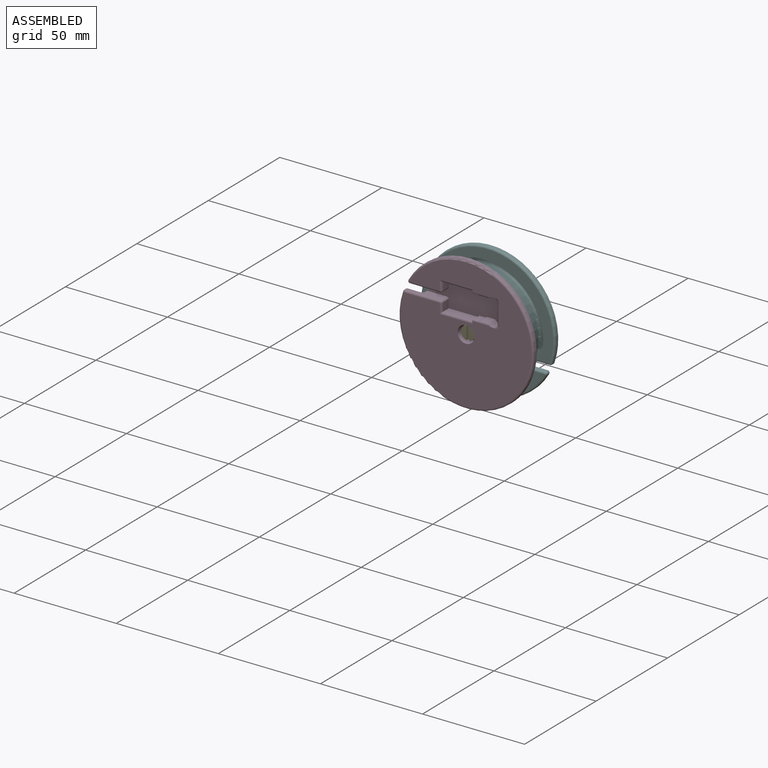
[diagram: assembled view]
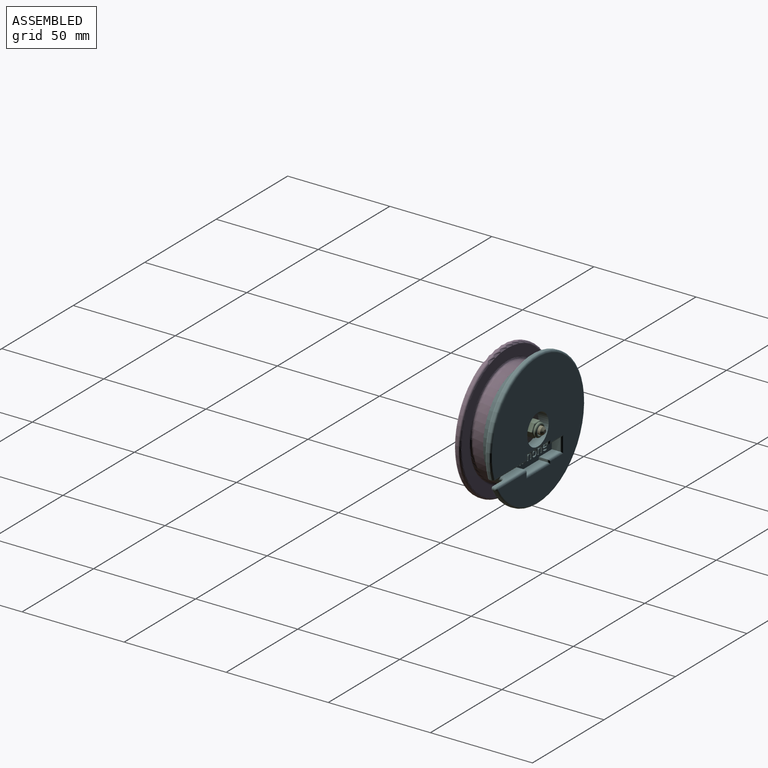
[diagram: assembled view, second angle]
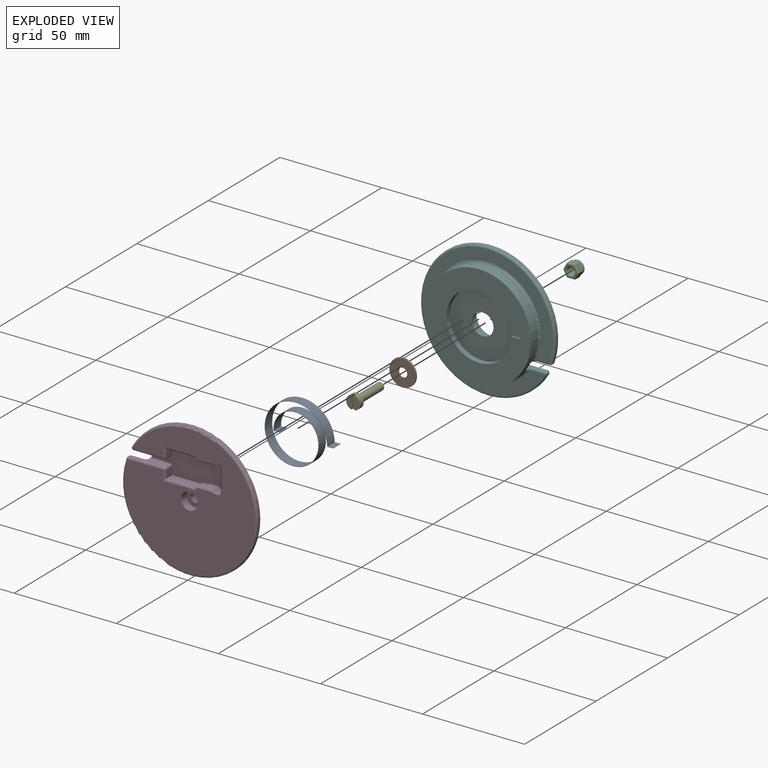
[diagram: exploded view]
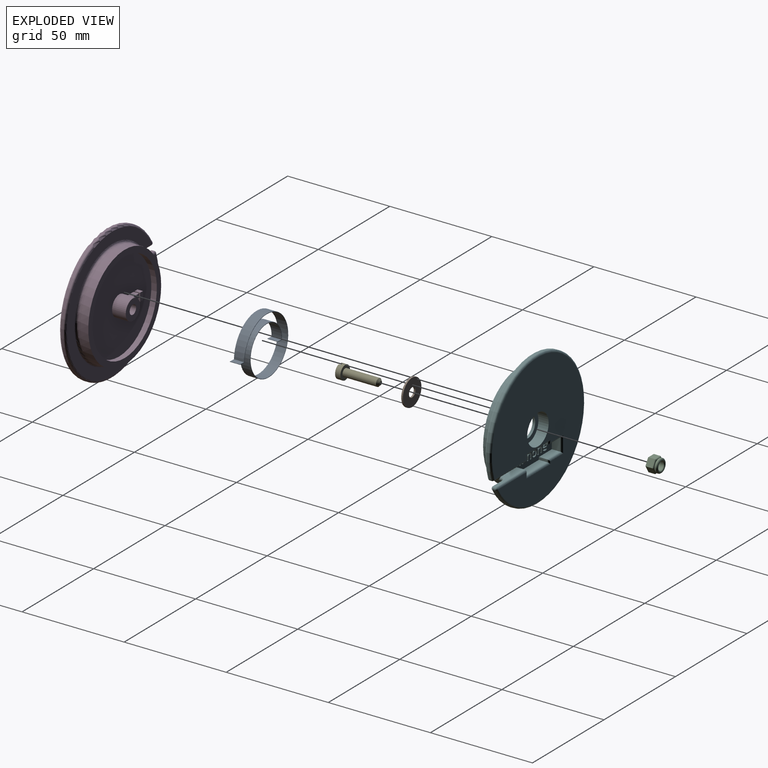
[diagram: exploded view, second angle]
ASSEMBLY  parts=6 mates=5
PART A: 12 faces, bbox 33.7x28.7x5 mm
  f0: plane 33.66x28.7mm, normal (0,0,-1), area 26mm2, adj f2,f3,f4,f5,f6,f7,f8,f9
  f1: plane 33.66x28.7mm, normal (0,0,1), area 26mm2, adj f2,f3,f4,f5,f6,f7,f8,f9
  f2: extruded ~30.7x28.66mm, area 625.3mm2, adj f0,f1,f5,f8
  f3: extruded ~30.3x28.26mm, area 615.8mm2, adj f0,f1,f4,f9
  f4: plane 5x2.79mm, normal (-0.07,1,0), area 14mm2, adj f0,f1,f3,f6
  f5: plane 5x0.2mm, normal (-1,-0.07,0), area 1mm2, adj f0,f1,f2,f7
  f6: plane 5x0.2mm, normal (1,0.07,0), area 1mm2, adj f0,f1,f4,f7
  f7: plane 5x2.99mm, normal (0.07,-1,0), area 15mm2, adj f0,f1,f5,f6
  f8: plane 5x2.8mm, normal (-0.04,1,0), area 14mm2, adj f0,f1,f2,f10
  f9: plane 5x0.2mm, normal (-1,-0.04,0), area 1mm2, adj f0,f1,f3,f11
  f10: plane 5x0.2mm, normal (1,0.04,0), area 1mm2, adj f0,f1,f8,f11
  f11: plane 5x3mm, normal (0.04,-1,0), area 15mm2, adj f0,f1,f9,f10
PART B: 4 faces, bbox 13x13x0.8 mm
  f0: cylinder r=2.25mm len=4.5mm, axis (0,0,1), area 11.3mm2, adj f2,f3
  f1: cylinder r=6.5mm len=13mm, axis (0,0,1), area 32.7mm2, adj f2,f3
  f2: plane 13x13mm, normal (0,0,-1), area 116.8mm2, adj f0,f1
  f3: plane 13x13mm, normal (0,0,1), area 116.8mm2, adj f0,f1
PART C: 33 faces, bbox 7.5x7.1x5.5 mm
  f0: cylinder r=2mm len=4.5mm, axis (0,0,1), area 56.5mm2, adj f31,f32
  f1: cylinder r=3.3mm len=6.6mm, axis (0,0,1), area 2.1mm2, adj f3,f4
  f2: plane 5.2x5.2mm, normal (0,0,1), area 1.6mm2, adj f3,f32
  f3: torus R=2.6mm, axis (0,0,1), area 21mm2, adj f1,f2
  f4: torus R=2.6mm, axis (0,0,1), area 21mm2, adj f1,f12
  f5: plane 3.3x3mm, normal (0.87,-0.5,0), area 11.4mm2, adj f6,f10,f15,f19
  f6: plane 3.81x3mm, normal (0,-1,0), area 11.4mm2, adj f5,f7,f20,f23
  f7: plane 3.05x3mm, normal (-0.87,-0.5,0), area 10.6mm2, adj f6,f24,f27,f30
  f8: plane 3x2.8mm, normal (-0.87,0.5,0), area 9.7mm2, adj f17,f25,f26,f30
  f9: plane 3.52x3mm, normal (0,1,0), area 10.6mm2, adj f10,f16,f17,f18
  f10: plane 3.3x3mm, normal (0.87,0.5,0), area 11.4mm2, adj f5,f9,f13,f14
  f11: plane 6.47x5.6mm, normal (0,0,-1), area 7.5mm2, adj f13,f15,f16,f20,f24,f25,f31
  f12: plane 6.47x5.6mm, normal (0,0,1), area 5.9mm2, adj f4,f14,f18,f19,f23,f26,f27
  f13: cylinder r=0.5mm len=3.55mm, axis (-0.5,0.87,0), area 2.8mm2, adj f10,f11,f15,f16
  f14: cylinder r=0.5mm len=3.55mm, axis (0.5,-0.87,0), area 2.8mm2, adj f10,f12,f18,f19
  f15: cylinder r=0.5mm len=3.55mm, axis (0.5,0.87,0), area 2.8mm2, adj f5,f11,f13,f20
  f16: cylinder r=0.5mm len=3.52mm, axis (-1,0,0), area 2.7mm2, adj f9,f11,f13,f21
  f17: cylinder r=0.5mm len=3mm, axis (0,0,1), area 1.6mm2, adj f8,f9,f21,f22
  f18: cylinder r=0.5mm len=3.52mm, axis (1,0,0), area 2.7mm2, adj f9,f12,f14,f22
  f19: cylinder r=0.5mm len=3.55mm, axis (-0.5,-0.87,0), area 2.8mm2, adj f5,f12,f14,f23
  f20: cylinder r=0.5mm len=3.81mm, axis (1,0,0), area 2.8mm2, adj f6,f11,f15,f24
  f21: sphere r=0.5mm, area 0.3mm2, adj f16,f17,f25
  f22: sphere r=0.5mm, area 0.3mm2, adj f17,f18,f26
  f23: cylinder r=0.5mm len=3.81mm, axis (-1,0,0), area 2.8mm2, adj f6,f12,f19,f27
  f24: cylinder r=0.5mm len=3.3mm, axis (0.5,-0.87,0), area 2.7mm2, adj f7,f11,f20,f28
  f25: cylinder r=0.5mm len=3.05mm, axis (-0.5,-0.87,0), area 2.5mm2, adj f8,f11,f21,f28
  f26: cylinder r=0.5mm len=3.05mm, axis (0.5,0.87,0), area 2.5mm2, adj f8,f12,f22,f29
  f27: cylinder r=0.5mm len=3.3mm, axis (-0.5,0.87,0), area 2.7mm2, adj f7,f12,f23,f29
  f28: sphere r=0.5mm, area 0.3mm2, adj f24,f25,f30
  f29: sphere r=0.5mm, area 0.3mm2, adj f26,f27,f30
  f30: cylinder r=0.5mm len=3mm, axis (0,0,1), area 1.6mm2, adj f7,f8,f28,f29
  f31: torus R=2.5mm, axis (0,0,-1), area 10.8mm2, adj f0,f11
  f32: torus R=2.5mm, axis (0,0,1), area 10.8mm2, adj f0,f2
PART D: 79 faces, bbox 71.4x13x71.4 mm
  f0: cylinder r=33mm len=66mm, axis (0,1,0), area 201.1mm2, adj f27,f28,f29,f30
  f1: plane 64x64mm, normal (0,1,0), area 976.7mm2, adj f28,f31,f47,f53
  f2: plane 64x64mm, normal (0,-1,0), area 2658.4mm2, adj f7,f8,f12,f19,f23,f24,f29,f55
  f3: cylinder r=25.5mm len=51mm, axis (0,1,0), area 787.4mm2, adj f4,f31,f49,f50,f51
  f4: plane 51x51mm, normal (0,1,0), area 452.4mm2, adj f3,f38
  f5: plane 11x4mm, normal (-1,0,0), area 44mm2, adj f6,f25,f26,f74
  f6: plane 4x1.5mm, normal (-0.62,0,-0.78), area 7.7mm2, adj f5,f7,f26,f75
  f7: plane 5x3.1mm, normal (0,0,-1), area 7.8mm2, adj f2,f6,f8,f26,f75
  f8: plane 5x1.23mm, normal (0.62,0,-0.78), area 7.7mm2, adj f2,f7,f26,f68,f69
  f9: plane 4x2.99mm, normal (0,0,-1), area 11.9mm2, adj f26,f67,f68,f69
  f10: plane 4.87x1.35mm, normal (-0.32,0,-0.95), area 6.6mm2, adj f11,f26,f67,f68
  f11: plane 4.87x2.5mm, normal (0,0,-1), area 12.2mm2, adj f10,f12,f26,f68
  f12: plane 5x1.7mm, normal (-1,0,0), area 3.7mm2, adj f2,f11,f13,f26,f61,f68
  f13: plane 15x4mm, normal (0,0,-1), area 60mm2, adj f12,f14,f26,f61
  f14: plane 4x3.95mm, normal (1,0,0), area 15.8mm2, adj f13,f26,f62,f63
  f15: plane 14.79x4mm, normal (0,0,-1), area 32.8mm2, adj f26,f30,f47,f48,f49,f63,f65
  f16: plane 17.3x4.11mm, normal (0,0,1), area 45.9mm2, adj f26,f27,f50,f51,f52,f53,f56,f59
  f17: plane 4x3.95mm, normal (1,0,0), area 15.8mm2, adj f18,f26,f56,f57
  f18: plane 15x4mm, normal (0,0,1), area 60mm2, adj f17,f19,f26,f55
  f19: plane 5x1.7mm, normal (-1,0,0), area 3.7mm2, adj f2,f18,f20,f26,f55,f71
  f20: plane 4.87x2.5mm, normal (0,0,1), area 12.2mm2, adj f19,f21,f26,f71
  f21: plane 4.87x1.35mm, normal (-0.32,0,0.95), area 6.6mm2, adj f20,f26,f71,f72
  f22: plane 4x2.99mm, normal (0,0,1), area 11.9mm2, adj f26,f70,f71,f72
  f23: plane 5x1.23mm, normal (0.62,0,0.78), area 7.7mm2, adj f2,f24,f26,f70,f71
  f24: plane 5x3.1mm, normal (0,0,1), area 7.8mm2, adj f2,f23,f25,f26,f73
  f25: plane 4x1.5mm, normal (-0.62,0,0.78), area 7.7mm2, adj f5,f24,f26,f73
  f26: plane 36.7x13.4mm, normal (0,-1,0), area 374.2mm2, adj f5,f6,f7,f8,f9,f10,f11,f12
  f27: cylinder r=1mm len=1mm, axis (0,1,0), area 1.2mm2, adj f0,f16,f54,f60
  f28: torus R=32mm, axis (0,-1,0), area 312.4mm2, adj f0,f1,f46,f54
  f29: torus R=32mm, axis (0,-1,0), area 312.4mm2, adj f0,f2,f60,f66
  f30: cylinder r=1mm len=1.5mm, axis (0,1,0), area 2.1mm2, adj f0,f15,f46,f66
  f31: torus R=26.5mm, axis (0,-1,0), area 244.8mm2, adj f1,f3,f48,f52
  f32: plane 4x2.7mm, normal (0,0,-1), area 10.8mm2, adj f33,f40,f41,f42
  f33: plane 2.7x2mm, normal (1,0,0), area 5.4mm2, adj f32,f34,f41,f42
  f34: plane 4x2.7mm, normal (0,0,1), area 10.8mm2, adj f33,f40,f41,f42
  f35: plane 4x2.7mm, normal (1,0,0), area 10.8mm2, adj f36,f39,f41,f43
  f36: plane 2.7x2mm, normal (0,0,1), area 5.4mm2, adj f35,f37,f41,f43
  f37: plane 4x2.7mm, normal (-1,0,0), area 10.8mm2, adj f36,f39,f41,f43
  f38: cylinder r=22.5mm len=45mm, axis (0,1,0), area 381.7mm2, adj f4,f41
  f39: plane 2.7x2mm, normal (0,0,-1), area 5.4mm2, adj f35,f37,f41,f43
  f40: plane 2.7x2mm, normal (-1,0,0), area 5.4mm2, adj f32,f34,f41,f42
  f41: plane 45x45mm, normal (0,1,0), area 1495.9mm2, adj f32,f33,f34,f35,f36,f37,f38,f39
  f42: plane 4x2mm, normal (0,1,0), area 8mm2, adj f32,f33,f34,f40
  f43: plane 4x2mm, normal (0,1,0), area 8mm2, adj f35,f36,f37,f39
  f44: plane 10x10mm, normal (0,1,0), area 62.6mm2, adj f45,f76
  f45: cylinder r=5mm len=10mm, axis (0,-1,0), area 210.5mm2, adj f41,f44
  f46: sphere r=1mm, area 2.1mm2, adj f28,f30,f47
  f47: cylinder r=1mm len=6.58mm, axis (1,0,0), area 10.3mm2, adj f1,f15,f46,f48
  f48: bspline ~3.24x2.37mm, area 4.9mm2, adj f15,f31,f47,f49
  f49: cylinder r=1mm len=2mm, axis (0,1,0), area 2.9mm2, adj f3,f15,f26,f48,f50
  f50: torus R=24.5mm, axis (0,-1,0), area 8.6mm2, adj f3,f16,f26,f49,f51
  f51: cylinder r=1mm len=2mm, axis (0,1,0), area 1.7mm2, adj f3,f16,f50,f52
  f52: bspline ~2.71x2.42mm, area 3.1mm2, adj f16,f31,f51,f53
  f53: cylinder r=1mm len=5.89mm, axis (-1,0,0), area 9.3mm2, adj f1,f16,f52,f54
  f54: sphere r=1mm, area 1.2mm2, adj f27,f28,f53
  f55: cylinder r=1mm len=16mm, axis (-1,0,0), area 24.1mm2, adj f2,f18,f19,f57
  f56: cylinder r=1mm len=4mm, axis (0,-1,0), area 6.3mm2, adj f16,f17,f26,f58
  f57: cylinder r=1mm len=4.95mm, axis (0,0,1), area 6.8mm2, adj f2,f17,f55,f58
  f58: sphere r=1mm, area 1.6mm2, adj f56,f57,f59
  f59: cylinder r=1mm len=17.29mm, axis (-1,0,0), area 27.2mm2, adj f2,f16,f58,f60
  f60: sphere r=1mm, area 1.2mm2, adj f27,f29,f59
  f61: cylinder r=1mm len=16mm, axis (1,0,0), area 24.1mm2, adj f2,f12,f13,f62
  f62: cylinder r=1mm len=4.95mm, axis (0,0,1), area 6.8mm2, adj f2,f14,f61,f64
  f63: cylinder r=1mm len=4mm, axis (0,-1,0), area 6.3mm2, adj f14,f15,f26,f64
  f64: sphere r=1mm, area 1.6mm2, adj f62,f63,f65
  f65: cylinder r=1mm len=14.79mm, axis (1,0,0), area 23.2mm2, adj f2,f15,f64,f66
  f66: sphere r=1mm, area 2.1mm2, adj f29,f30,f65
  f67: cylinder r=1mm len=4.32mm, axis (0,-1,0), area 1.3mm2, adj f9,f10,f26,f68
  f68: cylinder r=1mm len=8.75mm, axis (1,0,0), area 8.7mm2, adj f2,f8,f9,f10,f11,f12,f67,f69
  f69: cylinder r=1mm len=4.62mm, axis (0,-1,0), area 2.9mm2, adj f8,f9,f26,f68
  f70: cylinder r=1mm len=4.62mm, axis (0,-1,0), area 2.9mm2, adj f22,f23,f26,f71
  f71: cylinder r=1mm len=8.75mm, axis (-1,0,0), area 8.7mm2, adj f2,f19,f20,f21,f22,f23,f70,f72
  f72: cylinder r=1mm len=4.32mm, axis (0,-1,0), area 1.3mm2, adj f21,f22,f26,f71
  f73: cylinder r=1mm len=2.5mm, axis (-0.78,0,-0.62), area 2.6mm2, adj f2,f24,f25,f74
  f74: cylinder r=1mm len=11.96mm, axis (0,0,-1), area 17.8mm2, adj f2,f5,f73,f75
  f75: cylinder r=1mm len=2.5mm, axis (0.78,0,-0.62), area 2.6mm2, adj f2,f6,f7,f74
  f76: cylinder r=2.25mm len=9mm, axis (0,-1,0), area 127.2mm2, adj f44,f77
  f77: plane 8.25x8.25mm, normal (0,-1,0), area 37.6mm2, adj f76,f78
  f78: cylinder r=4.12mm len=8.25mm, axis (0,-1,0), area 103.7mm2, adj f2,f77
PART E: 10 faces, bbox 6.8x6.8x20 mm
  f0: cylinder r=3.4mm len=6.8mm, axis (0,0,1), area 52.3mm2, adj f1,f2,f3,f6,f7,f8
  f1: plane 6.61x2.6mm, normal (0,0,1), area 12.8mm2, adj f0,f6
  f2: plane 6.8x6.8mm, normal (0,0,-1), area 25mm2, adj f0,f4
  f3: plane 6.61x2.6mm, normal (0,0,1), area 12.8mm2, adj f0,f7
  f4: cylinder r=1.9mm len=16.4mm, axis (0,0,1), area 195.8mm2, adj f2,f9
  f5: plane 1.8x1.8mm, normal (0,0,-1), area 2.5mm2, adj f9
  f6: plane 6.61x1mm, normal (-1,0,0), area 6.6mm2, adj f0,f1,f8
  f7: plane 6.61x1mm, normal (1,0,0), area 6.6mm2, adj f0,f3,f8
  f8: plane 6.8x1.6mm, normal (0,0,1), area 10.8mm2, adj f0,f6,f7
  f9: cone r=1.9mm half-angle=45deg, axis (0,0,1), area 12.4mm2, adj f4,f5
PART F: 163 faces, bbox 71.4x9x71.4 mm
  f0: plane 38.48x9mm, normal (0,1,0), area 201.8mm2, adj f7,f8,f9,f10,f11,f12,f13,f14
  f1: cylinder r=5.25mm len=10.5mm, axis (0,1,0), area 42.9mm2, adj f50,f55
  f2: plane 64x64mm, normal (0,1,0), area 2661.7mm2, adj f18,f19,f20,f21,f22,f23,f24,f26
  f3: cylinder r=33mm len=66mm, axis (0,-1,0), area 201.1mm2, adj f34,f35,f38,f39
  f4: cylinder r=25.5mm len=51mm, axis (0,1,0), area 787.4mm2, adj f5,f43,f45,f46,f48
  f5: plane 51x51mm, normal (0,-1,0), area 1236.6mm2, adj f4,f51,f52,f53,f54
  f6: plane 64x64mm, normal (0,-1,0), area 976.7mm2, adj f39,f40,f44,f45
  f7: plane 22.07x4.11mm, normal (0,0,-1), area 65mm2, adj f0,f25,f30,f35,f40,f42,f43,f46
  f8: plane 19.56x4mm, normal (0,0,1), area 51.9mm2, adj f0,f28,f33,f38,f44,f47,f48
  f9: plane 4x1.75mm, normal (-1,0,0), area 7mm2, adj f0,f10,f28,f29
  f10: plane 15x4mm, normal (0,0,1), area 60mm2, adj f0,f9,f11,f26
  f11: plane 4x1.25mm, normal (1,0,0), area 5mm2, adj f0,f10,f12,f23
  f12: plane 9x4mm, normal (0,0,1), area 36mm2, adj f0,f11,f13,f21
  f13: plane 6.5x4mm, normal (1,0,0), area 26mm2, adj f0,f12,f14,f19
  f14: plane 9x4mm, normal (0,0,-1), area 36mm2, adj f0,f13,f15,f18
  f15: plane 4x1.25mm, normal (1,0,0), area 5mm2, adj f0,f14,f16,f20
  f16: plane 15x4mm, normal (0,0,-1), area 60mm2, adj f0,f15,f17,f22
  f17: plane 4x1.75mm, normal (-1,0,0), area 7mm2, adj f0,f16,f24,f25
  f18: cylinder r=1mm len=10mm, axis (-1,0,0), area 14.1mm2, adj f2,f14,f19,f20
  f19: cylinder r=1mm len=8.5mm, axis (0,0,-1), area 11.4mm2, adj f2,f13,f18,f21
  f20: cylinder r=1mm len=2.25mm, axis (0,0,-1), area 2mm2, adj f2,f15,f18,f22
  f21: cylinder r=1mm len=10mm, axis (1,0,0), area 14.1mm2, adj f2,f12,f19,f23
  f22: cylinder r=1mm len=17mm, axis (-1,0,0), area 24.7mm2, adj f2,f16,f20,f24
  f23: cylinder r=1mm len=2.25mm, axis (0,0,-1), area 2mm2, adj f2,f11,f21,f26
  f24: cylinder r=1mm len=2.75mm, axis (0,0,1), area 3.3mm2, adj f2,f17,f22,f27
  f25: cylinder r=1mm len=4mm, axis (0,1,0), area 6.3mm2, adj f0,f7,f17,f27
  f26: cylinder r=1mm len=17mm, axis (1,0,0), area 24.7mm2, adj f2,f10,f23,f29
  f27: sphere r=1mm, area 1.6mm2, adj f24,f25,f30
  f28: cylinder r=1mm len=4mm, axis (0,1,0), area 6.3mm2, adj f0,f8,f9,f31
  f29: cylinder r=1mm len=2.75mm, axis (0,0,1), area 3.3mm2, adj f2,f9,f26,f31
  f30: cylinder r=1mm len=22.06mm, axis (-1,0,0), area 34.7mm2, adj f2,f7,f27,f32
  f31: sphere r=1mm, area 1.6mm2, adj f28,f29,f33
  f32: sphere r=1mm, area 1.3mm2, adj f30,f34,f35
  f33: cylinder r=1mm len=19.56mm, axis (1,0,0), area 30.7mm2, adj f2,f8,f31,f36
  f34: torus R=32mm, axis (0,1,0), area 312.4mm2, adj f2,f3,f32,f36
  f35: cylinder r=1mm len=1mm, axis (0,-1,0), area 1.2mm2, adj f3,f7,f32,f37
  f36: sphere r=1mm, area 2.1mm2, adj f33,f34,f38
  f37: sphere r=1mm, area 1.2mm2, adj f35,f39,f40
  f38: cylinder r=1mm len=1.5mm, axis (0,-1,0), area 2.1mm2, adj f3,f8,f36,f41
  f39: torus R=32mm, axis (0,1,0), area 312.4mm2, adj f3,f6,f37,f41
  f40: cylinder r=1mm len=5.89mm, axis (-1,0,0), area 9.3mm2, adj f6,f7,f37,f42
  f41: sphere r=1mm, area 2.1mm2, adj f38,f39,f44
  f42: bspline ~2.71x2.17mm, area 3.1mm2, adj f7,f40,f43,f45
  f43: cylinder r=1mm len=2mm, axis (0,1,0), area 1.8mm2, adj f4,f7,f42,f46
  f44: cylinder r=1mm len=6.58mm, axis (1,0,0), area 10.3mm2, adj f6,f8,f41,f47
  f45: torus R=26.5mm, axis (0,1,0), area 244.8mm2, adj f4,f6,f42,f47
  f46: torus R=24.5mm, axis (0,1,0), area 8.6mm2, adj f0,f4,f7,f43,f48
  f47: bspline ~2.95x2.37mm, area 4.9mm2, adj f8,f44,f45,f48
  f48: cylinder r=1mm len=2mm, axis (0,1,0), area 2.9mm2, adj f0,f4,f8,f46,f47
  f49: cylinder r=7.5mm len=15mm, axis (0,1,0), area 235.6mm2, adj f2,f50
  f50: plane 15x15mm, normal (0,1,0), area 90.1mm2, adj f1,f49
  f51: cylinder r=16mm len=32mm, axis (0,-1,0), area 270.1mm2, adj f5,f52,f54,f55
  f52: plane 4x2.7mm, normal (0,0,1), area 10.8mm2, adj f5,f51,f53,f55
  f53: plane 2.7x0.5mm, normal (-1,0,0), area 1.4mm2, adj f5,f52,f54,f55
  f54: plane 4x2.7mm, normal (0,0,-1), area 10.8mm2, adj f5,f51,f53,f55
  f55: plane 35.99x32mm, normal (0,-1,0), area 719.7mm2, adj f1,f51,f52,f53,f54
  f56: extruded ~1x0.47mm, area 0.7mm2, adj f0,f57,f60,f61
  f57: extruded ~1x0.47mm, area 0.7mm2, adj f0,f56,f58,f61
  f58: extruded ~1x0.35mm, area 0.4mm2, adj f0,f57,f59,f61
  f59: extruded ~1x0.31mm, area 0.3mm2, adj f0,f58,f60,f61
  f60: extruded ~1x0.47mm, area 0.7mm2, adj f0,f56,f59,f61
  f61: plane 0.93x0.84mm, normal (0,1,0), area 0.7mm2, adj f56,f57,f58,f59,f60
  f62: extruded ~1.18x1mm, area 1.3mm2, adj f0,f63,f81,f82
  f63: extruded ~1x0.62mm, area 0.6mm2, adj f0,f62,f64,f82
  f64: extruded ~1x0.48mm, area 0.5mm2, adj f0,f63,f65,f82
  f65: plane 1x0.66mm, normal (1,0,0), area 0.7mm2, adj f0,f64,f66,f82
  f66: extruded ~1x0.53mm, area 0.6mm2, adj f0,f65,f67,f82
  f67: extruded ~1x0.54mm, area 0.5mm2, adj f0,f66,f68,f82
  f68: extruded ~1x0.57mm, area 0.6mm2, adj f0,f67,f69,f82
  f69: extruded ~1x0.57mm, area 0.6mm2, adj f0,f68,f70,f82
  f70: plane 2.02x1mm, normal (0,0,1), area 2mm2, adj f0,f69,f71,f82
  f71: plane 1x0.42mm, normal (1,0,0), area 0.4mm2, adj f0,f70,f72,f82
  f72: extruded ~1.05x1mm, area 1.1mm2, adj f0,f71,f73,f82
  f73: extruded ~1.04x1mm, area 1.1mm2, adj f0,f72,f74,f82
  f74: extruded ~1.09x1mm, area 1.2mm2, adj f0,f73,f75,f82
  f75: extruded ~1.22x1mm, area 1.3mm2, adj f0,f74,f81,f82
  f76: extruded ~1x0.43mm, area 0.5mm2, adj f77,f80,f82,f83
  f77: extruded ~1x0.43mm, area 0.5mm2, adj f76,f78,f82,f83
  f78: extruded ~1x0.49mm, area 0.5mm2, adj f77,f79,f82,f83
  f79: plane 1.2x1mm, normal (0,0,-1), area 1.2mm2, adj f78,f80,f82,f83
  f80: extruded ~1x0.49mm, area 0.5mm2, adj f76,f79,f82,f83
  f81: extruded ~1.18x1mm, area 1.3mm2, adj f0,f62,f75,f82
  f82: plane 3.25x2.89mm, normal (0,1,0), area 5.9mm2, adj f62,f63,f64,f65,f66,f67,f68,f69
  f83: plane 1.2x0.66mm, normal (0,1,0), area 0.6mm2, adj f76,f77,f78,f79,f80
  f84: extruded ~1.2x1mm, area 1.3mm2, adj f0,f85,f101,f102
  f85: extruded ~1x0.86mm, area 0.9mm2, adj f0,f84,f86,f102
  f86: extruded ~1x0.56mm, area 0.8mm2, adj f0,f85,f87,f102
  f87: extruded ~1x0.8mm, area 0.8mm2, adj f0,f86,f88,f102
  f88: extruded ~1.13x1mm, area 1.2mm2, adj f0,f87,f89,f102
  f89: extruded ~1.2x1mm, area 1.3mm2, adj f0,f88,f90,f102
  f90: extruded ~1x0.86mm, area 0.9mm2, adj f0,f89,f91,f102
  f91: extruded ~1x0.57mm, area 0.8mm2, adj f0,f90,f92,f102
  f92: extruded ~1x0.8mm, area 0.8mm2, adj f0,f91,f101,f102
  f93: extruded ~1x0.7mm, area 0.7mm2, adj f94,f100,f102,f103
  f94: extruded ~1x0.7mm, area 0.7mm2, adj f93,f95,f102,f103
  f95: extruded ~1x0.49mm, area 0.6mm2, adj f94,f96,f102,f103
  f96: extruded ~1x0.5mm, area 0.6mm2, adj f95,f97,f102,f103
  f97: extruded ~1x0.7mm, area 0.7mm2, adj f96,f98,f102,f103
  f98: extruded ~1x0.71mm, area 0.7mm2, adj f97,f99,f102,f103
  f99: extruded ~1x0.49mm, area 0.6mm2, adj f98,f100,f102,f103
  f100: extruded ~1x0.5mm, area 0.6mm2, adj f93,f99,f102,f103
  f101: extruded ~1.13x1mm, area 1.2mm2, adj f0,f84,f92,f102
  f102: plane 3.25x3.04mm, normal (0,1,0), area 6mm2, adj f84,f85,f86,f87,f88,f89,f90,f91
  f103: plane 1.88x1.29mm, normal (0,1,0), area 2mm2, adj f93,f94,f95,f96,f97,f98,f99,f100
  f104: plane 1x0.86mm, normal (0,0,1), area 0.9mm2, adj f0,f105,f107,f108
  f105: plane 3.14x1mm, normal (1,0,0), area 3.1mm2, adj f0,f104,f106,f108
  f106: plane 1x0.86mm, normal (0,0,-1), area 0.9mm2, adj f0,f105,f107,f108
  f107: plane 3.14x1mm, normal (-1,0,0), area 3.1mm2, adj f0,f104,f106,f108
  f108: plane 3.14x0.86mm, normal (0,1,0), area 2.7mm2, adj f104,f105,f106,f107
  f109: plane 1x0.86mm, normal (0,0,1), area 0.9mm2, adj f0,f110,f125,f126
  f110: plane 2.05x1mm, normal (1,0,0), area 2mm2, adj f0,f109,f111,f126
  f111: extruded ~1x0.85mm, area 0.9mm2, adj f0,f110,f112,f126
  f112: extruded ~1x0.84mm, area 0.9mm2, adj f0,f111,f113,f126
  f113: extruded ~1x0.91mm, area 1.1mm2, adj f0,f112,f114,f126
  f114: plane 1x0.05mm, normal (0,0,-1), area 0mm2, adj f0,f113,f115,f126
  f115: plane 1x0.25mm, normal (1,0,0.08), area 0.3mm2, adj f0,f114,f116,f126
  f116: extruded ~1x0.49mm, area 0.5mm2, adj f0,f115,f117,f126
  f117: plane 1x0.89mm, normal (1,0,0), area 0.9mm2, adj f0,f116,f118,f126
  f118: plane 1x0.86mm, normal (0,0,-1), area 0.9mm2, adj f0,f117,f119,f126
  f119: plane 4.37x1mm, normal (-1,0,0), area 4.4mm2, adj f0,f118,f120,f126
  f120: plane 1x0.86mm, normal (0,0,1), area 0.9mm2, adj f0,f119,f121,f126
  f121: plane 1.48x1mm, normal (1,0,0), area 1.5mm2, adj f0,f120,f122,f126
  f122: extruded ~1x0.79mm, area 0.8mm2, adj f0,f121,f123,f126
  f123: extruded ~1x0.52mm, area 0.6mm2, adj f0,f122,f124,f126
  f124: extruded ~1x0.68mm, area 1mm2, adj f0,f123,f125,f126
  f125: plane 1.83x1mm, normal (-1,0,0), area 1.8mm2, adj f0,f109,f124,f126
  f126: plane 4.37x2.9mm, normal (0,1,0), area 7.1mm2, adj f109,f110,f111,f112,f113,f114,f115,f116
  f127: plane 1x0.86mm, normal (0,0,1), area 0.9mm2, adj f0,f128,f143,f144
  f128: plane 2.05x1mm, normal (1,0,0), area 2mm2, adj f0,f127,f129,f144
  f129: extruded ~1x0.85mm, area 0.9mm2, adj f0,f128,f130,f144
  f130: extruded ~1x0.83mm, area 0.9mm2, adj f0,f129,f131,f144
  f131: extruded ~1x0.57mm, area 0.6mm2, adj f0,f130,f132,f144
  f132: extruded ~1x0.39mm, area 0.5mm2, adj f0,f131,f133,f144
  f133: plane 1x0.05mm, normal (0,0,-1), area 0mm2, adj f0,f132,f134,f144
  f134: plane 1x0.4mm, normal (0.96,0,-0.28), area 0.4mm2, adj f0,f133,f135,f144
  f135: plane 1x0.65mm, normal (0,0,-1), area 0.7mm2, adj f0,f134,f136,f144
  f136: plane 3.14x1mm, normal (-1,0,0), area 3.1mm2, adj f0,f135,f137,f144
  f137: plane 1x0.86mm, normal (0,0,1), area 0.9mm2, adj f0,f136,f138,f144
  f138: plane 1.48x1mm, normal (1,0,0), area 1.5mm2, adj f0,f137,f139,f144
  f139: extruded ~1x0.8mm, area 0.8mm2, adj f0,f138,f140,f144
  f140: extruded ~1x0.52mm, area 0.6mm2, adj f0,f139,f141,f144
  f141: extruded ~1x0.39mm, area 0.4mm2, adj f0,f140,f142,f144
  f142: extruded ~1x0.51mm, area 0.5mm2, adj f0,f141,f143,f144
  f143: plane 1.83x1mm, normal (-1,0,0), area 1.8mm2, adj f0,f127,f142,f144
  f144: plane 3.2x2.9mm, normal (0,1,0), area 6mm2, adj f127,f128,f129,f130,f131,f132,f133,f134
  f145: extruded ~1.01x1mm, area 1.1mm2, adj f0,f146,f160,f161
  f146: extruded ~1x0.96mm, area 1.1mm2, adj f0,f145,f147,f161
  f147: extruded ~1.14x1mm, area 1.2mm2, adj f0,f146,f148,f161
  f148: plane 1.31x1mm, normal (0,0,-1), area 1.3mm2, adj f0,f147,f149,f161
  f149: plane 4.1x1mm, normal (-1,0,0), area 4.1mm2, adj f0,f148,f150,f161
  f150: plane 1x0.87mm, normal (0,0,1), area 0.9mm2, adj f0,f149,f151,f161
  f151: plane 1.46x1mm, normal (1,0,0), area 1.5mm2, adj f0,f150,f152,f161
  f152: plane 1x0.37mm, normal (0,0,1), area 0.4mm2, adj f0,f151,f160,f161
  f153: plane 1x0.29mm, normal (0,0,-1), area 0.3mm2, adj f154,f159,f161,f162
  f154: plane 1.22x1mm, normal (1,0,0), area 1.2mm2, adj f153,f155,f161,f162
  f155: plane 1x0.4mm, normal (0,0,1), area 0.4mm2, adj f154,f156,f161,f162
  f156: extruded ~1x0.52mm, area 0.6mm2, adj f155,f157,f161,f162
  f157: extruded ~1x0.45mm, area 0.5mm2, adj f156,f158,f161,f162
  f158: extruded ~1x0.46mm, area 0.5mm2, adj f157,f159,f161,f162
  f159: extruded ~1x0.6mm, area 0.6mm2, adj f153,f158,f161,f162
  f160: extruded ~1.18x1mm, area 1.3mm2, adj f0,f145,f152,f161
  f161: plane 4.1x2.83mm, normal (0,1,0), area 6.9mm2, adj f145,f146,f147,f148,f149,f150,f151,f152
  f162: plane 1.22x1.09mm, normal (0,1,0), area 1.2mm2, adj f153,f154,f155,f156,f157,f158,f159
PLACE A rot(axis=(1,0,0),90deg) t=(-0.47,6.37,0.2)mm
PLACE B rot(axis=(-1,0,0),90deg) t=(-24.97,8.47,-0.21)mm
PLACE C rot(axis=(-1,0,0),90deg) t=(-9.97,13.97,-0.21)mm
PLACE D t=(0,0.67,-0.21)mm
PLACE E rot(axis=(1,0,0),90deg) t=(0,-3.93,-0.21)mm
PLACE F t=(0.03,6.67,-0.21)mm
MATE fastened B.f0 <-> F.f1  axis (0,-1,0) through (0.03,7.67,-0.21)mm
MATE fastened D.f76 <-> E.f4  axis (0,-1,0) through (0,-1.33,-0.21)mm
MATE fastened F.f55 <-> A.f0  axis (0,-1,0) through (16.03,6.37,0.2)mm
MATE fastened C.f0 <-> B.f0  axis (0,-1,0) through (0.03,8.47,-0.21)mm
MATE fastened F.f5 <-> D.f0  axis (0,-1,0) through (0,3.67,-0.21)mm
